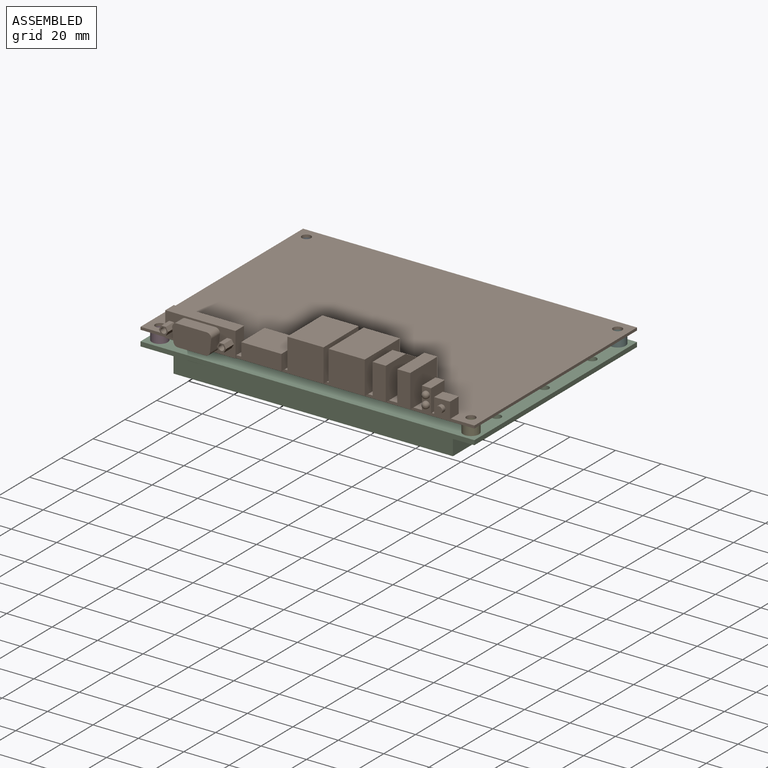
[diagram: assembled view]
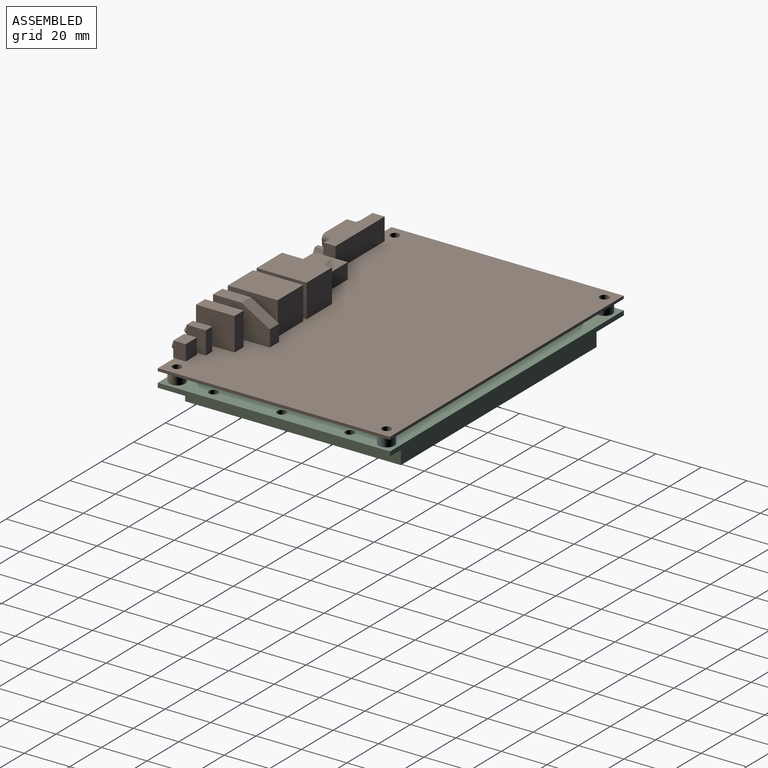
[diagram: assembled view, second angle]
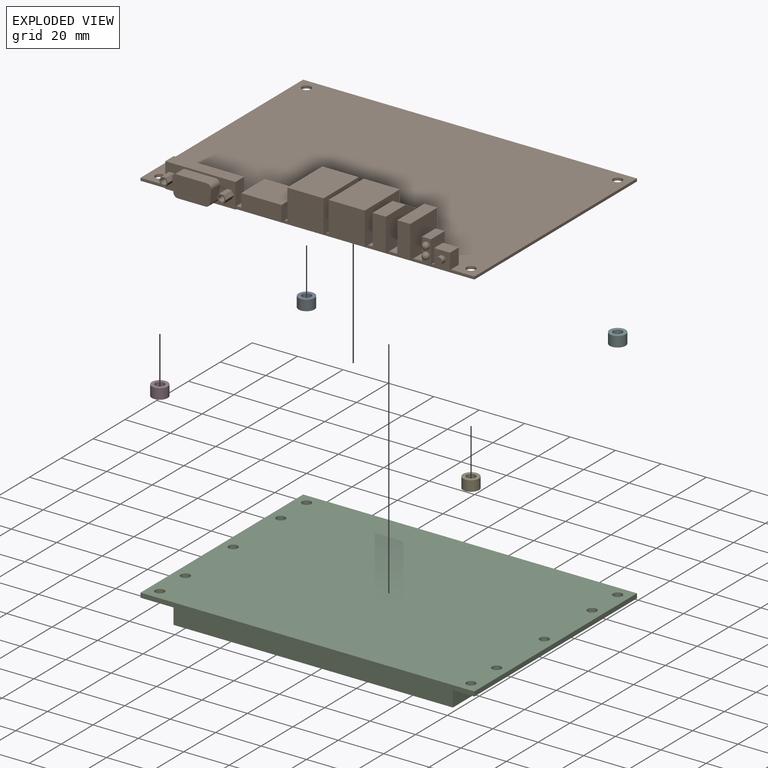
[diagram: exploded view]
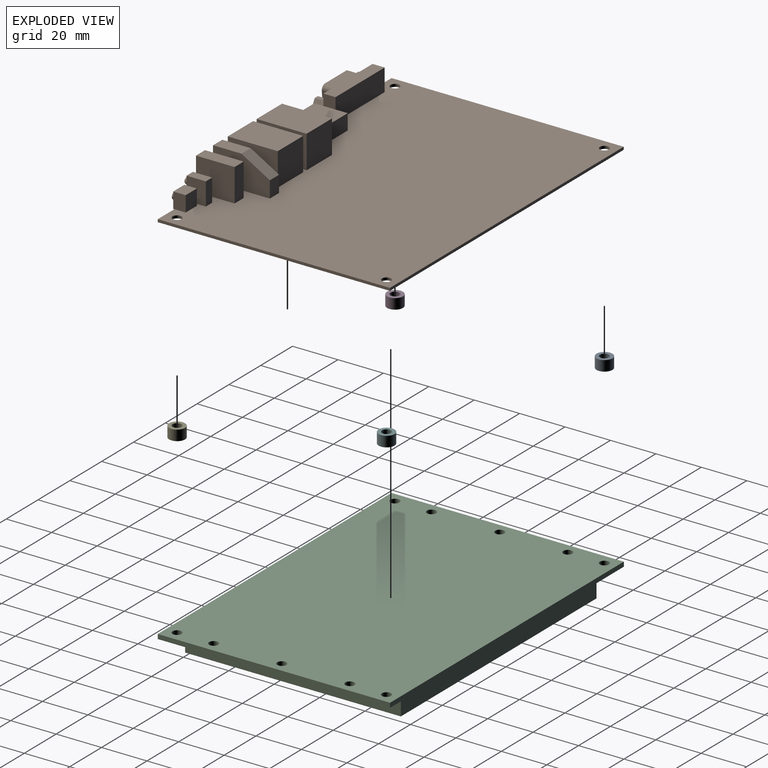
[diagram: exploded view, second angle]
ASSEMBLY  parts=6 mates=5
PART A: 4 faces, bbox 7x7x4.6 mm
  f0: cylinder r=2mm len=4.6mm, axis (0,0,-1), area 57.8mm2, adj f2,f3
  f1: cylinder r=3.5mm len=7mm, axis (0,0,-1), area 101.2mm2, adj f2,f3
  f2: plane 7x7mm, normal (0,0,1), area 25.9mm2, adj f0,f1
  f3: plane 7x7mm, normal (0,0,-1), area 25.9mm2, adj f0,f1
PART B: 92 faces, bbox 147x108.2x15.7 mm
  f0: plane 25x14.5mm, normal (-1,0,0), area 317.2mm2, adj f11,f63,f64,f65,f66,f91
  f1: plane 25x14.5mm, normal (1,0,0), area 317.2mm2, adj f11,f63,f64,f65,f66,f91
  f2: plane 30.91x11mm, normal (0,-1,0), area 165.5mm2, adj f3,f4,f5,f12,f18,f19,f20,f21
  f3: plane 11x5.35mm, normal (-1,0,0), area 53mm2, adj f2,f5,f10,f11,f12,f17
  f4: plane 11x5.35mm, normal (1,0,0), area 53mm2, adj f2,f5,f6,f11,f12,f17
  f5: plane 30.91x5.35mm, normal (0,0,1), area 165.4mm2, adj f2,f3,f4,f17
  f6: plane 104.84x1.2mm, normal (0,-1,0), area 125.8mm2, adj f4,f7,f11,f12,f45,f51,f57,f63
  f7: plane 102.22x1.2mm, normal (1,0,0), area 122.7mm2, adj f6,f8,f11,f12
  f8: plane 147.01x1.2mm, normal (0,1,0), area 176.4mm2, adj f7,f9,f11,f12
  f9: plane 102.22x1.2mm, normal (-1,0,0), area 122.7mm2, adj f8,f10,f11,f12
  f10: plane 11.27x1.2mm, normal (0,-1,0), area 13.5mm2, adj f3,f9,f11,f12
  f11: plane 147.01x102.22mm, normal (0,0,1), area 13678.5mm2, adj f0,f1,f3,f4,f6,f7,f8,f9
  f12: plane 147.01x102.72mm, normal (0,0,-1), area 14992.6mm2, adj f2,f3,f4,f6,f7,f8,f9,f10
  f13: cylinder r=2mm len=4mm, axis (0,0,1), area 15.1mm2, adj f11,f12
  f14: cylinder r=2mm len=4mm, axis (0,0,1), area 15.1mm2, adj f11,f12
  f15: cylinder r=2mm len=4mm, axis (0,0,1), area 15.1mm2, adj f11,f12
  f16: cylinder r=2mm len=4mm, axis (0,0,1), area 15.1mm2, adj f11,f12
  f17: plane 30.91x9.8mm, normal (0,1,0), area 302.9mm2, adj f3,f4,f5,f11
  f18: cylinder r=2mm len=5.5mm, axis (0,-1,0), area 18.4mm2, adj f2,f19,f25,f26
  f19: plane 5.5x5.4mm, normal (0.99,0,-0.1), area 29.9mm2, adj f2,f18,f20,f26
  f20: cylinder r=2mm len=5.5mm, axis (0,-1,0), area 16.2mm2, adj f2,f19,f21,f26
  f21: plane 12.12x5.5mm, normal (0,0,-1), area 66.6mm2, adj f2,f20,f22,f26
  f22: cylinder r=2mm len=5.5mm, axis (0,-1,0), area 16.2mm2, adj f2,f21,f23,f26
  f23: plane 5.5x5.4mm, normal (-0.99,0,-0.1), area 29.9mm2, adj f2,f22,f24,f26
  f24: cylinder r=2mm len=5.5mm, axis (0,-1,0), area 18.4mm2, adj f2,f23,f25,f26
  f25: plane 13.21x5.5mm, normal (0,0,1), area 72.7mm2, adj f2,f18,f24,f26
  f26: plane 17.21x9.4mm, normal (0,-1,0), area 153.3mm2, adj f18,f19,f20,f21,f22,f23,f24,f25
  f27: plane 5x1.75mm, normal (0.87,0,0.5), area 10.1mm2, adj f2,f28,f33,f34
  f28: plane 5x2.02mm, normal (0,0,1), area 10.1mm2, adj f2,f27,f29,f34
  f29: plane 5x1.75mm, normal (-0.87,0,0.5), area 10.1mm2, adj f2,f28,f30,f34
  f30: plane 5x1.75mm, normal (-0.87,0,-0.5), area 10.1mm2, adj f2,f29,f31,f34
  f31: plane 5x2.02mm, normal (0,0,-1), area 10.1mm2, adj f2,f30,f33,f34
  f32: cylinder r=1.25mm len=5mm, axis (0,1,0), area 39.3mm2, adj f34,f35
  f33: plane 5x1.75mm, normal (0.87,0,-0.5), area 10.1mm2, adj f2,f27,f31,f34
  f34: plane 4.04x3.5mm, normal (0,-1,0), area 5.7mm2, adj f27,f28,f29,f30,f31,f32,f33
  f35: plane 2.5x2.5mm, normal (0,-1,0), area 4.9mm2, adj f32
  f36: plane 5x1.75mm, normal (0.87,0,0.5), area 10.1mm2, adj f2,f37,f41,f43
  f37: plane 5x2.02mm, normal (0,0,1), area 10.1mm2, adj f2,f36,f38,f43
  f38: plane 5x1.75mm, normal (-0.87,0,0.5), area 10.1mm2, adj f2,f37,f39,f43
  f39: plane 5x1.75mm, normal (-0.87,0,-0.5), area 10.1mm2, adj f2,f38,f40,f43
  f40: plane 5x2.02mm, normal (0,0,-1), area 10.1mm2, adj f2,f39,f41,f43
  f41: plane 5x1.75mm, normal (0.87,0,-0.5), area 10.1mm2, adj f2,f36,f40,f43
  f42: cylinder r=1.25mm len=5mm, axis (0,1,0), area 39.3mm2, adj f43,f44
  f43: plane 4.04x3.5mm, normal (0,-1,0), area 5.7mm2, adj f36,f37,f38,f39,f40,f41,f42
  f44: plane 2.5x2.5mm, normal (0,-1,0), area 4.9mm2, adj f42
  f45: plane 17.7x2mm, normal (0,0,-1), area 35.4mm2, adj f6,f46,f47,f49
  f46: plane 14.7x6.9mm, normal (-1,0,0), area 101.4mm2, adj f11,f45,f48,f49,f50
  f47: plane 14.7x6.9mm, normal (1,0,0), area 101.4mm2, adj f11,f45,f48,f49,f50
  f48: plane 17.7x14.7mm, normal (0,0,1), area 260.2mm2, adj f46,f47,f49,f50
  f49: plane 17.7x6.9mm, normal (0,-1,0), area 122.1mm2, adj f45,f46,f47,f48
  f50: plane 17.7x6.9mm, normal (0,1,0), area 122.1mm2, adj f11,f46,f47,f48
  f51: plane 15.95x2mm, normal (0,0,-1), area 31.9mm2, adj f6,f52,f53,f55
  f52: plane 22x14.5mm, normal (-1,0,0), area 319mm2, adj f11,f51,f54,f55,f56
  f53: plane 22x14.5mm, normal (1,0,0), area 319mm2, adj f11,f51,f54,f55,f56
  f54: plane 22x15.95mm, normal (0,0,1), area 350.9mm2, adj f52,f53,f55,f56
  f55: plane 15.95x14.5mm, normal (0,-1,0), area 231.3mm2, adj f51,f52,f53,f54
  f56: plane 15.95x14.5mm, normal (0,1,0), area 231.3mm2, adj f11,f52,f53,f54
  f57: plane 15.95x2mm, normal (0,0,-1), area 31.9mm2, adj f6,f58,f59,f61
  f58: plane 22x14.5mm, normal (-1,0,0), area 319mm2, adj f11,f57,f60,f61,f62
  f59: plane 22x14.5mm, normal (1,0,0), area 319mm2, adj f11,f57,f60,f61,f62
  f60: plane 22x15.95mm, normal (0,0,1), area 350.9mm2, adj f58,f59,f61,f62
  f61: plane 15.95x14.5mm, normal (0,-1,0), area 231.3mm2, adj f57,f58,f59,f60
  f62: plane 15.95x14.5mm, normal (0,1,0), area 231.3mm2, adj f11,f58,f59,f60
  f63: plane 5.8x2mm, normal (0,0,-1), area 11.6mm2, adj f0,f1,f6,f65
  f64: plane 12.5x5.8mm, normal (0,0,1), area 72.5mm2, adj f0,f1,f65,f91
  f65: plane 14.5x5.8mm, normal (0,-1,0), area 84.1mm2, adj f0,f1,f63,f64
  f66: plane 7.25x5.8mm, normal (0,1,0), area 42.1mm2, adj f0,f1,f11,f91
  f67: plane 5.7x2mm, normal (0,0,-1), area 11.4mm2, adj f6,f68,f69,f71
  f68: plane 17x14.5mm, normal (-1,0,0), area 246.5mm2, adj f11,f67,f70,f71,f72
  f69: plane 17x14.5mm, normal (1,0,0), area 246.5mm2, adj f11,f67,f70,f71,f72
  f70: plane 17x5.7mm, normal (0,0,1), area 96.9mm2, adj f68,f69,f71,f72
  f71: plane 14.5x5.7mm, normal (0,-1,0), area 82.6mm2, adj f67,f68,f69,f70
  f72: plane 14.5x5.7mm, normal (0,1,0), area 82.6mm2, adj f11,f68,f69,f70
  f73: plane 4x0.5mm, normal (0,0,-1), area 2mm2, adj f6,f74,f75,f77
  f74: plane 10x8.5mm, normal (-1,0,0), area 85mm2, adj f11,f73,f76,f77,f78
  f75: plane 10x8.5mm, normal (1,0,0), area 85mm2, adj f11,f73,f76,f77,f78
  f76: plane 8.5x4mm, normal (0,0,1), area 34mm2, adj f74,f75,f77,f78
  f77: plane 10x4mm, normal (0,-1,0), area 25.9mm2, adj f73,f74,f75,f76,f79,f80
  f78: plane 10x4mm, normal (0,1,0), area 40mm2, adj f11,f74,f75,f76
  f79: cylinder r=1.5mm len=3mm, axis (0,1,0), area 4.7mm2, adj f77,f82
  f80: cylinder r=1.5mm len=3mm, axis (0,1,0), area 4.7mm2, adj f77,f81
  f81: sphere r=1.5mm, area 14.1mm2, adj f80
  f82: sphere r=1.5mm, area 14.1mm2, adj f79
  f83: plane 7x0.5mm, normal (0,0,-1), area 3.5mm2, adj f6,f84,f85,f87
  f84: plane 6.89x5.5mm, normal (-1,0,0), area 37.9mm2, adj f11,f83,f86,f87,f88
  f85: plane 6.89x5.5mm, normal (1,0,0), area 37.9mm2, adj f11,f83,f86,f87,f88
  f86: plane 7x5.5mm, normal (0,0,1), area 38.5mm2, adj f84,f85,f87,f88
  f87: plane 7x6.89mm, normal (0,-1,0), area 41.2mm2, adj f83,f84,f85,f86,f89
  f88: plane 7x6.89mm, normal (0,1,0), area 48.3mm2, adj f11,f84,f85,f86
  f89: cylinder r=1.5mm len=3mm, axis (0,1,0), area 18.8mm2, adj f87,f90
  f90: plane 3x3mm, normal (0,-1,0), area 7.1mm2, adj f89
  f91: plane 12.5x7.25mm, normal (0,0.5,0.87), area 83.8mm2, adj f0,f1,f64,f66
PART C: 21 faces, bbox 147x102.3x11 mm
  f0: plane 102.3x2mm, normal (1,0,0), area 204.6mm2, adj f1,f3,f4,f5
  f1: plane 147x2mm, normal (0,1,0), area 294mm2, adj f0,f2,f4,f5
  f2: plane 102.3x2mm, normal (-1,0,0), area 204.6mm2, adj f1,f3,f4,f5
  f3: plane 147x2mm, normal (0,-1,0), area 294mm2, adj f0,f2,f4,f5
  f4: plane 147x102.3mm, normal (0,0,-1), area 3227.4mm2, adj f0,f1,f2,f3,f6,f7,f8,f9
  f5: plane 147x102.3mm, normal (0,0,1), area 14912.4mm2, adj f0,f1,f2,f3,f11,f12,f13,f14
  f6: plane 95x9mm, normal (1,0,0), area 855mm2, adj f4,f7,f9,f10
  f7: plane 123x9mm, normal (0,-1,0), area 1107mm2, adj f4,f6,f8,f10
  f8: plane 95x9mm, normal (-1,0,0), area 855mm2, adj f4,f7,f9,f10
  f9: plane 123x9mm, normal (0,1,0), area 1107mm2, adj f4,f6,f8,f10
  f10: plane 123x95mm, normal (0,0,-1), area 11685mm2, adj f6,f7,f8,f9
  f11: cylinder r=2mm len=4mm, axis (0,0,1), area 25.1mm2, adj f4,f5
  f12: cylinder r=2mm len=4mm, axis (0,0,1), area 25.1mm2, adj f4,f5
  f13: cylinder r=2mm len=4mm, axis (0,0,1), area 25.1mm2, adj f4,f5
  f14: cylinder r=2mm len=4mm, axis (0,0,1), area 25.1mm2, adj f4,f5
  f15: cylinder r=2mm len=4mm, axis (0,0,1), area 25.1mm2, adj f4,f5
  f16: cylinder r=2mm len=4mm, axis (0,0,1), area 25.1mm2, adj f4,f5
  f17: cylinder r=2mm len=4mm, axis (0,0,1), area 25.1mm2, adj f4,f5
  f18: cylinder r=2mm len=4mm, axis (0,0,1), area 25.1mm2, adj f4,f5
  f19: cylinder r=2mm len=4mm, axis (0,0,1), area 25.1mm2, adj f4,f5
  f20: cylinder r=2mm len=4mm, axis (0,0,1), area 25.1mm2, adj f4,f5
PART D: same geometry as A
PART E: same geometry as A
PART F: same geometry as A
PLACE A t=(-128.72,-44.71,-37.09)mm
PLACE B t=(-60.22,-90.82,-32.49)mm fixed
PLACE C t=(-60.22,-90.82,-37.09)mm
PLACE D t=(-128.72,-136.93,-37.09)mm
PLACE E t=(8.29,-136.93,-37.09)mm
PLACE F t=(8.29,-44.71,-37.09)mm
MATE fastened B.f16 <-> F.f0  axis (0,0,-1) through (8.29,-44.71,-32.49)mm
MATE fastened E.f0 <-> B.f15  axis (0,0,-1) through (8.29,-136.93,-32.49)mm
MATE fastened B.f14 <-> D.f0  axis (0,0,-1) through (-128.72,-136.93,-32.49)mm
MATE fastened D.f0 <-> C.f11  axis (0,0,-1) through (-128.72,-136.93,-37.09)mm
MATE fastened B.f13 <-> A.f0  axis (0,0,-1) through (-128.72,-44.71,-32.49)mm
